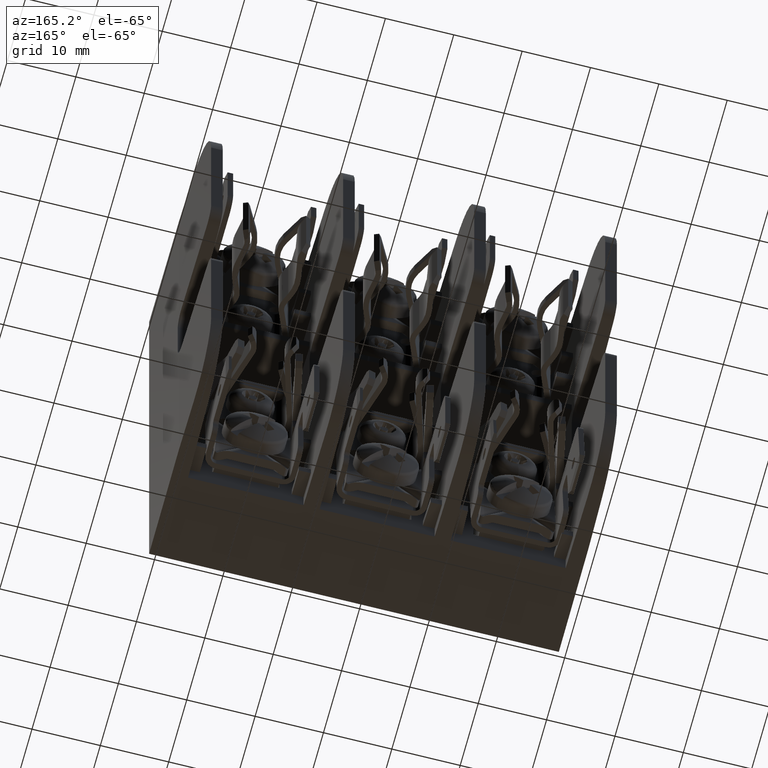
[diagram: clean part render]
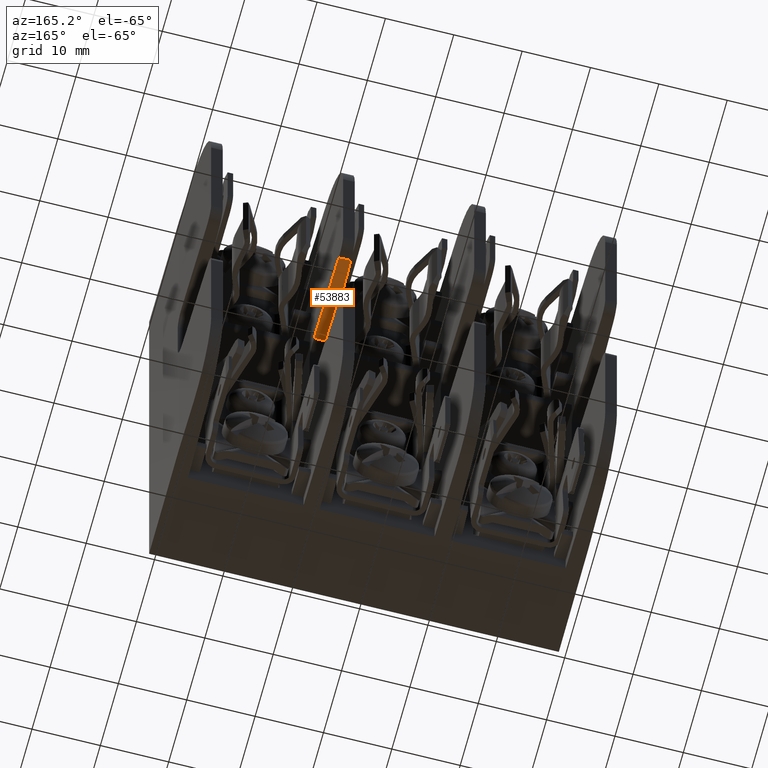
[diagram: same view with one face highlighted and labeled with its STEP entity id]
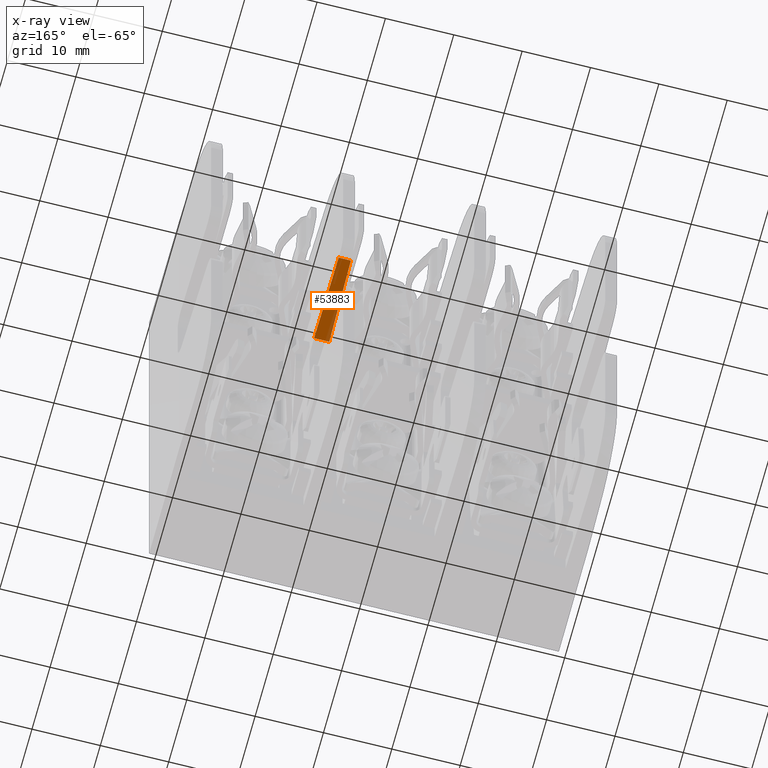
[diagram: x-ray of the same camera — body ghosted, the highlighted face saturated]
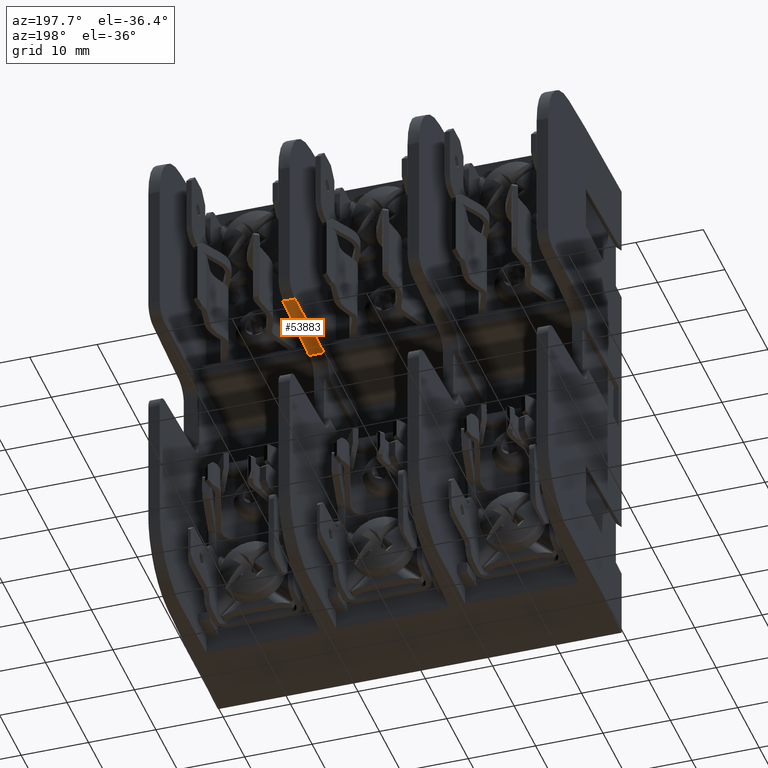
[diagram: same view with one face highlighted and labeled with its STEP entity id]
A machine part, auxiliary view. The second image highlights one B-rep face of the part: STEP entity #53883.
The next image is the same camera in x-ray: the body ghosted, the highlighted face saturated — about 13% of this face is hidden behind the body in this view.
A second angle (auxiliary view) of the same face is appended — the face is thin or edge-on in the first view.
In plain terms, the highlighted planar face has unit normal (0, -0.0349, 0.9994).
Its self-contained STEP definition (entity closure, byte-faithful):
#9216 = ORIENTED_EDGE ( 'NONE', *, *, #24329, .T. ) ;
#12085 = CARTESIAN_POINT ( 'NONE',  ( -0.4150463250984787700, 1.220245653193332100, 0.2676521453904088800 ) ) ;
#15187 = EDGE_LOOP ( 'NONE', ( #47316, #9216, #113417, #46520 ) ) ;
#23228 = CARTESIAN_POINT ( 'NONE',  ( -0.4238697086721056600, 0.7147543468066677200, 0.2500000000000000600 ) ) ;
#24329 = EDGE_CURVE ( 'NONE', #45071, #82317, #50598, .T. ) ;
#25810 = AXIS2_PLACEMENT_3D ( 'NONE', #122537, #56179, #133710 ) ;
#26667 = VECTOR ( 'NONE', #85976, 39.37007874015748100 ) ;
#28782 = FACE_OUTER_BOUND ( 'NONE', #15187, .T. ) ;
#32010 = EDGE_CURVE ( 'NONE', #135010, #111943, #111862, .T. ) ;
#45071 = VERTEX_POINT ( 'NONE', #12085 ) ;
#45315 = CARTESIAN_POINT ( 'NONE',  ( -1.298227448159704900, 1.220245653193332100, 0.2676521453904089900 ) ) ;
#46520 = ORIENTED_EDGE ( 'NONE', *, *, #32010, .F. ) ;
#47316 = ORIENTED_EDGE ( 'NONE', *, *, #67420, .F. ) ;
#50598 = LINE ( 'NONE', #45315, #135637 ) ;
#53883 = ADVANCED_FACE ( 'NONE', ( #28782 ), #55705, .F. ) ;
#55705 = PLANE ( 'NONE',  #25810 ) ;
#56179 = DIRECTION ( 'NONE',  ( 0.0000000000000000000, -0.03489949670249673600, 0.9993908270190959800 ) ) ;
#67420 = EDGE_CURVE ( 'NONE', #45071, #135010, #73227, .T. ) ;
#70398 = VECTOR ( 'NONE', #84360, 39.37007874015748100 ) ;
#73227 = LINE ( 'NONE', #141783, #132268 ) ;
#78455 = EDGE_CURVE ( 'NONE', #111943, #82317, #129321, .T. ) ;
#82317 = VERTEX_POINT ( 'NONE', #132221 ) ;
#84360 = DIRECTION ( 'NONE',  ( -0.01744177813809054700, 0.9992388003036512000, 0.03489418781261009700 ) ) ;
#85976 = DIRECTION ( 'NONE',  ( 1.000000000000000000, -0.0000000000000000000, -0.0000000000000000000 ) ) ;
#86515 = DIRECTION ( 'NONE',  ( -0.01744177813809054700, -0.9992388003036512000, -0.03489418781261009700 ) ) ;
#106657 = CARTESIAN_POINT ( 'NONE',  ( -0.3472291777593786200, 1.352940007102932700, 0.2722859343361419000 ) ) ;
#111862 = LINE ( 'NONE', #141250, #26667 ) ;
#111943 = VERTEX_POINT ( 'NONE', #124201 ) ;
#113417 = ORIENTED_EDGE ( 'NONE', *, *, #78455, .F. ) ;
#122537 = CARTESIAN_POINT ( 'NONE',  ( -1.298227448159704900, 1.310000000000000100, 0.2707864362461266900 ) ) ;
#122857 = DIRECTION ( 'NONE',  ( 1.000000000000000000, 0.0000000000000000000, 0.0000000000000000000 ) ) ;
#124201 = CARTESIAN_POINT ( 'NONE',  ( -0.3360896056226522800, 0.7147543468066677200, 0.2500000000000000600 ) ) ;
#129321 = LINE ( 'NONE', #106657, #70398 ) ;
#132221 = CARTESIAN_POINT ( 'NONE',  ( -0.3449129891962791600, 1.220245653193332100, 0.2676521453904088800 ) ) ;
#132268 = VECTOR ( 'NONE', #86515, 39.37007874015748100 ) ;
#133710 = DIRECTION ( 'NONE',  ( 0.0000000000000000000, -0.9993908270190959800, -0.03489949670249673600 ) ) ;
#135010 = VERTEX_POINT ( 'NONE', #23228 ) ;
#135637 = VECTOR ( 'NONE', #122857, 39.37007874015748100 ) ;
#141250 = CARTESIAN_POINT ( 'NONE',  ( -1.298227448159704900, 0.7147543468066677200, 0.2500000000000000600 ) ) ;
#141783 = CARTESIAN_POINT ( 'NONE',  ( -0.4242364521685089700, 0.6937436259693800000, 0.2492662894607856300 ) ) ;